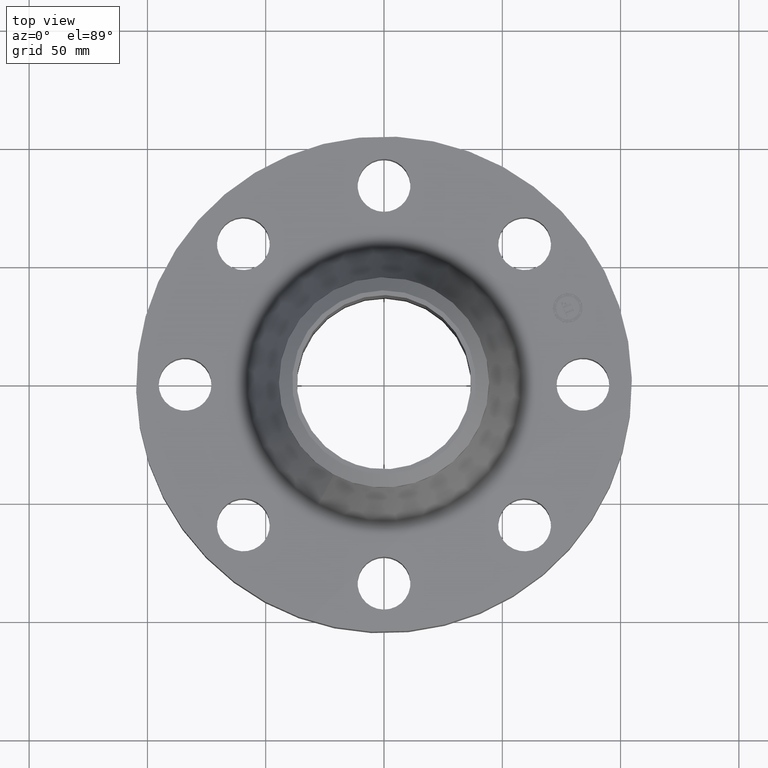
[diagram: clean part render]
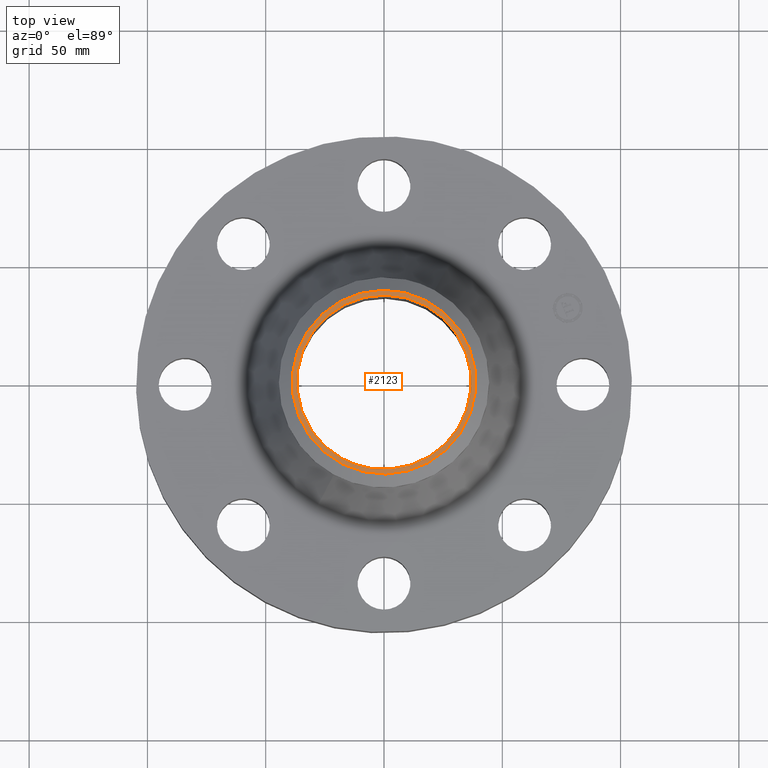
[diagram: same view with one face highlighted and labeled with its STEP entity id]
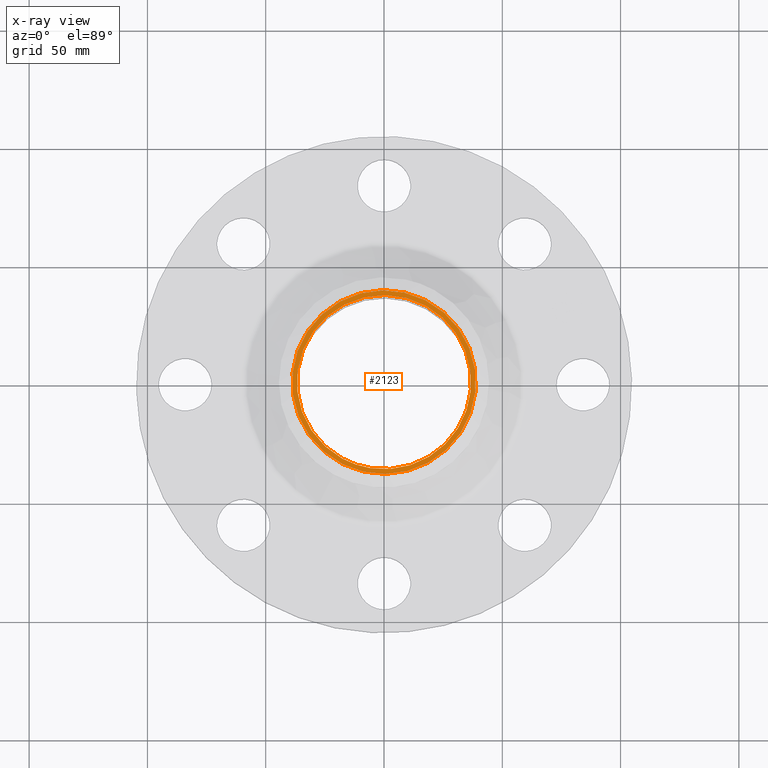
[diagram: x-ray of the same camera — body ghosted, the highlighted face saturated]
A machine part, top view. The second image highlights one B-rep face of the part: STEP entity #2123.
The next image is the same camera in x-ray: the body ghosted, the highlighted face saturated — about 0% of this face is hidden behind the body in this view.
In plain terms, the highlighted planar face has unit normal (0, 0, -1).
Its self-contained STEP definition (entity closure, byte-faithful):
#1440=AXIS2_PLACEMENT_3D('Circle Axis2P3D',#1438,#1439,$) ;
#2099=AXIS2_PLACEMENT_3D('Plane Axis2P3D',#2096,#2097,#2098) ;
#2103=AXIS2_PLACEMENT_3D('Circle Axis2P3D',#2101,#2102,$) ;
#2112=AXIS2_PLACEMENT_3D('Circle Axis2P3D',#2110,#2111,$) ;
#1389=CARTESIAN_POINT('Control Point',(0.695167030981,1.27249471475,3.25000000001)) ;
#1390=CARTESIAN_POINT('Control Point',(0.895050033361,1.16329813287,3.25000000001)) ;
#1391=CARTESIAN_POINT('Control Point',(1.07349233703,1.01485461525,3.25000000001)) ;
#1392=CARTESIAN_POINT('Control Point',(1.22018435983,0.832745949119,3.25000000001)) ;
#1393=CARTESIAN_POINT('Control Point',(1.43425960134,0.420823231109,3.25)) ;
#1394=CARTESIAN_POINT('Control Point',(1.47668429143,-0.0414631306978,3.25)) ;
#1395=CARTESIAN_POINT('Control Point',(1.45164094276,-0.273960327508,3.25)) ;
#1396=CARTESIAN_POINT('Control Point',(1.31174165049,-0.716607729694,3.25)) ;
#1397=CARTESIAN_POINT('Control Point',(1.01485461525,-1.07349233703,3.24999999999)) ;
#1398=CARTESIAN_POINT('Control Point',(0.83274594912,-1.22018435983,3.24999999999)) ;
#1399=CARTESIAN_POINT('Control Point',(0.42082323111,-1.43425960134,3.24999999999)) ;
#1400=CARTESIAN_POINT('Control Point',(-0.0414631306966,-1.47668429143,3.24999999999)) ;
#1401=CARTESIAN_POINT('Control Point',(-0.273960327506,-1.45164094276,3.24999999998)) ;
#1402=CARTESIAN_POINT('Control Point',(-0.4952840286,-1.38169129663,3.24999999998)) ;
#1403=CARTESIAN_POINT('Control Point',(-0.695167030979,-1.27249471475,3.24999999998)) ;
#1404=CARTESIAN_POINT('Vertex',(0.695167030981,1.27249471475,3.24999999998)) ;
#1406=CARTESIAN_POINT('Vertex',(-0.695167030978,-1.27249471473,3.25000000001)) ;
#1438=CARTESIAN_POINT('Axis2P3D Location',(0.,0.,3.24999999998)) ;
#2096=CARTESIAN_POINT('Axis2P3D Location',(0.,1.75000000001,3.25000000001)) ;
#2101=CARTESIAN_POINT('Axis2P3D Location',(-1.28116589953E-011,-4.33179301703E-012,3.25000000001)) ;
#2105=CARTESIAN_POINT('Vertex',(0.73291707339,-1.34159570387,3.25000000001)) ;
#2107=CARTESIAN_POINT('Vertex',(-0.732917073391,1.34159570387,3.25000000001)) ;
#2110=CARTESIAN_POINT('Axis2P3D Location',(1.28116589953E-011,9.66589887745E-012,3.25000000001)) ;
#1439=DIRECTION('Axis2P3D Direction',(-0.,0.,-0.0393700787402)) ;
#2097=DIRECTION('Axis2P3D Direction',(0.,0.,-0.0393700787402)) ;
#2098=DIRECTION('Axis2P3D XDirection',(0.0393700787402,0.,0.)) ;
#2102=DIRECTION('Axis2P3D Direction',(0.,0.,-0.0393700787402)) ;
#2111=DIRECTION('Axis2P3D Direction',(0.,0.,-0.0393700787402)) ;
#2116=ORIENTED_EDGE('',*,*,#2109,.T.) ;
#2117=ORIENTED_EDGE('',*,*,#2114,.T.) ;
#2120=ORIENTED_EDGE('',*,*,#1442,.T.) ;
#2121=ORIENTED_EDGE('',*,*,#1408,.T.) ;
#2122=FACE_BOUND('',#2119,.T.) ;
#2123=ADVANCED_FACE('PartBody',(#2118,#2122),#2100,.F.) ;
#1388=B_SPLINE_CURVE_WITH_KNOTS('',5,(#1389,#1390,#1391,#1392,#1393,#1394,#1395,#1396,#1397,#1398,#1399,#1400,#1401,#1402,#1403),.UNSPECIFIED.,.F.,.U.,(6,3,3,3,6),(-57.8524287162,-28.9262143581,0.,28.9262143581,57.8524287162),.UNSPECIFIED.) ;
#1441=CIRCLE('generated circle',#1440,1.45000000001) ;
#2104=CIRCLE('generated circle',#2103,1.52874015748) ;
#2113=CIRCLE('generated circle',#2112,1.52874015748) ;
#1408=EDGE_CURVE('',#1405,#1407,#1388,.T.) ;
#1442=EDGE_CURVE('',#1407,#1405,#1441,.T.) ;
#2109=EDGE_CURVE('',#2106,#2108,#2104,.F.) ;
#2114=EDGE_CURVE('',#2108,#2106,#2113,.F.) ;
#2115=EDGE_LOOP('',(#2116,#2117)) ;
#2119=EDGE_LOOP('',(#2120,#2121)) ;
#2118=FACE_OUTER_BOUND('',#2115,.T.) ;
#2100=PLANE('',#2099) ;
#1405=VERTEX_POINT('',#1404) ;
#1407=VERTEX_POINT('',#1406) ;
#2106=VERTEX_POINT('',#2105) ;
#2108=VERTEX_POINT('',#2107) ;